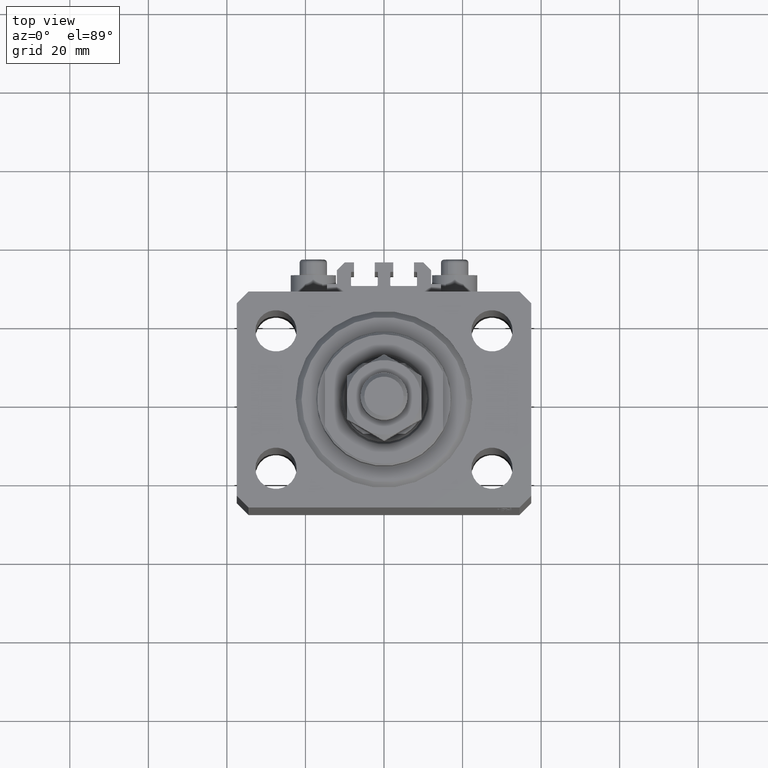
[diagram: clean part render]
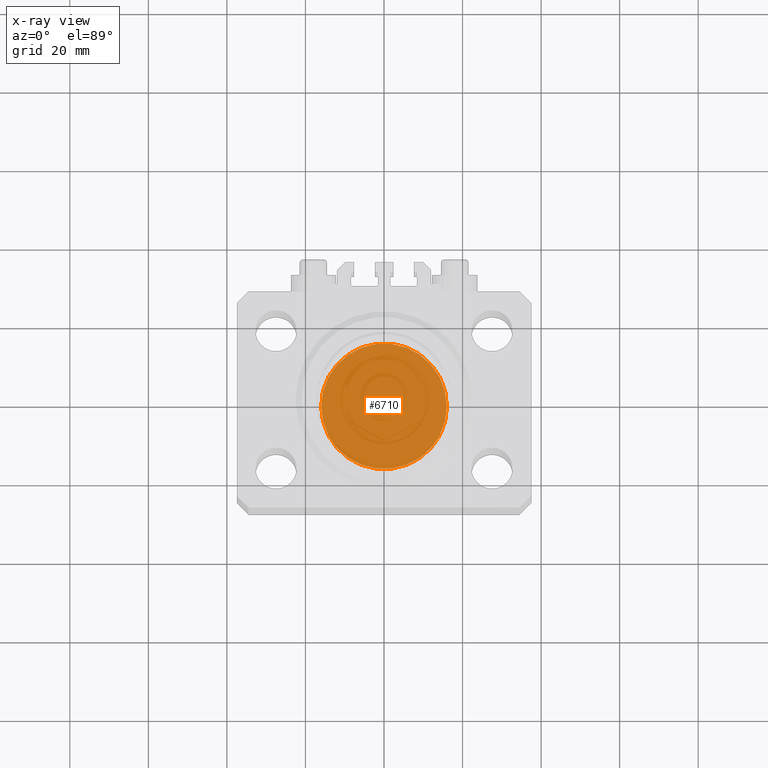
[diagram: x-ray — body ghosted, one internal face saturated and labeled with its STEP entity id]
A machine part, top view, then the same camera in x-ray: the body is ghosted and one INTERNAL B-rep face — a face not visible from any outside direction — is saturated and labeled: STEP entity #6710.
In plain terms, the highlighted planar face has unit normal (0, 0, 1).
Its self-contained STEP definition (entity closure, byte-faithful):
#1075 = FACE_OUTER_BOUND ( 'NONE', #16917, .T. ) ;
#2667 = AXIS2_PLACEMENT_3D ( 'NONE', #11920, #19822, #41340 ) ;
#6627 = CARTESIAN_POINT ( 'NONE',  ( 0.000000000000000000, 0.000000000000000000, 0.000000000000000000 ) ) ;
#6710 = ADVANCED_FACE ( 'NONE', ( #1075 ), #39134, .F. ) ;
#10170 = CIRCLE ( 'NONE', #18057, 16.00000000000000000 ) ;
#11920 = CARTESIAN_POINT ( 'NONE',  ( 0.000000000000000000, 0.000000000000000000, 0.000000000000000000 ) ) ;
#12203 = DIRECTION ( 'NONE',  ( 1.000000000000000000, 0.000000000000000000, -0.000000000000000000 ) ) ;
#13906 = VERTEX_POINT ( 'NONE', #37483 ) ;
#16917 = EDGE_LOOP ( 'NONE', ( #36541, #35344 ) ) ;
#18057 = AXIS2_PLACEMENT_3D ( 'NONE', #6627, #33074, #45687 ) ;
#19822 = DIRECTION ( 'NONE',  ( 0.000000000000000000, 0.000000000000000000, 1.000000000000000000 ) ) ;
#25543 = EDGE_CURVE ( 'NONE', #13906, #29888, #10170, .T. ) ;
#27943 = CIRCLE ( 'NONE', #2667, 16.00000000000000000 ) ;
#29888 = VERTEX_POINT ( 'NONE', #30339 ) ;
#30339 = CARTESIAN_POINT ( 'NONE',  ( -16.00000000000000000, 0.000000000000000000, 0.000000000000000000 ) ) ;
#30982 = DIRECTION ( 'NONE',  ( 0.000000000000000000, 0.000000000000000000, 1.000000000000000000 ) ) ;
#33074 = DIRECTION ( 'NONE',  ( 0.000000000000000000, 0.000000000000000000, 1.000000000000000000 ) ) ;
#35344 = ORIENTED_EDGE ( 'NONE', *, *, #25543, .F. ) ;
#36541 = ORIENTED_EDGE ( 'NONE', *, *, #45965, .F. ) ;
#37483 = CARTESIAN_POINT ( 'NONE',  ( 16.00000000000000000, 1.959434878635765131E-15, 0.000000000000000000 ) ) ;
#39134 = PLANE ( 'NONE',  #44180 ) ;
#41340 = DIRECTION ( 'NONE',  ( 1.000000000000000000, 0.000000000000000000, 0.000000000000000000 ) ) ;
#43740 = CARTESIAN_POINT ( 'NONE',  ( 0.000000000000000000, 0.000000000000000000, 0.000000000000000000 ) ) ;
#44180 = AXIS2_PLACEMENT_3D ( 'NONE', #43740, #30982, #12203 ) ;
#45687 = DIRECTION ( 'NONE',  ( 1.000000000000000000, 0.000000000000000000, 0.000000000000000000 ) ) ;
#45965 = EDGE_CURVE ( 'NONE', #29888, #13906, #27943, .T. ) ;